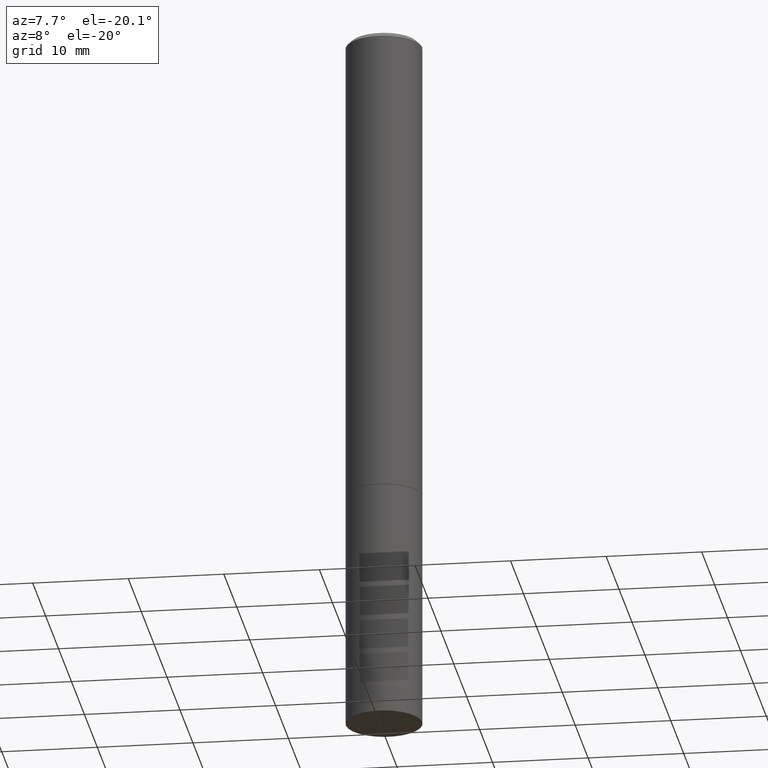
[diagram: clean part render]
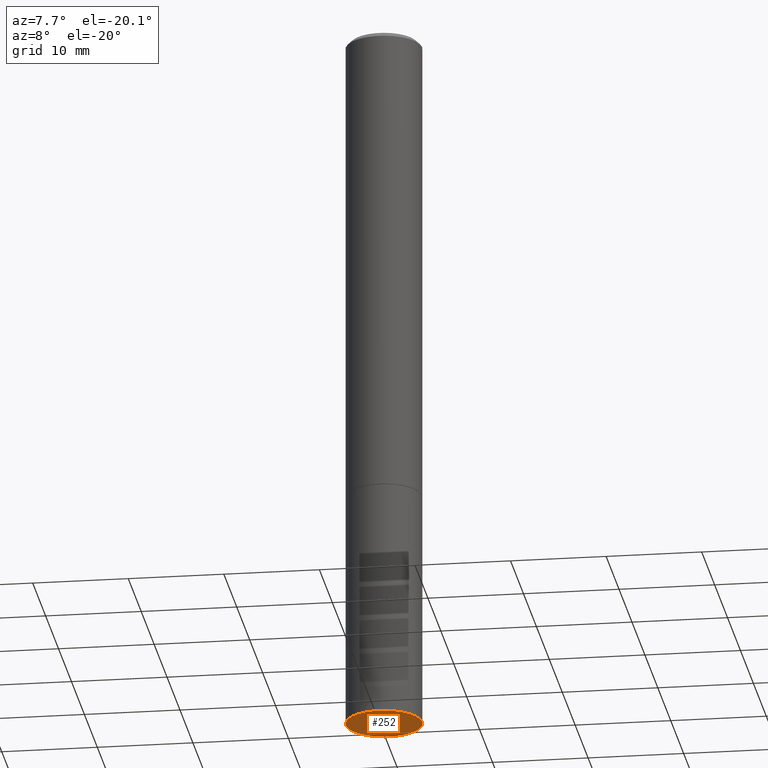
[diagram: same view with one face highlighted and labeled with its STEP entity id]
A machine part, auxiliary view. The second image highlights one B-rep face of the part: STEP entity #252.
In plain terms, the highlighted planar face has unit normal (0, -0, -1).
Its self-contained STEP definition (entity closure, byte-faithful):
#1 = DIRECTION ( 'NONE',  ( 1.000000000000000000, -6.982962677686261977E-15, 0.000000000000000000 ) ) ;
#10 = CARTESIAN_POINT ( 'NONE',  ( 7.220980290903470182E-29, -1.030964609733603853E-14, -2.952799999999999869 ) ) ;
#38 = EDGE_CURVE ( 'NONE', #97, #159, #75, .T. ) ;
#55 = DIRECTION ( 'NONE',  ( -2.445468806185136597E-29, 3.491481338843145583E-15, 1.000000000000000000 ) ) ;
#75 = CIRCLE ( 'NONE', #363, 0.1575000000000000011 ) ;
#91 = CIRCLE ( 'NONE', #235, 0.1575000000000000011 ) ;
#97 = VERTEX_POINT ( 'NONE', #350 ) ;
#122 = DIRECTION ( 'NONE',  ( 2.438088387897960049E-29, -3.491481338843145188E-15, -1.000000000000000000 ) ) ;
#129 = FACE_OUTER_BOUND ( 'NONE', #262, .T. ) ;
#144 = CARTESIAN_POINT ( 'NONE',  ( 7.220980290903470182E-29, -1.030964609733603853E-14, -2.952799999999999869 ) ) ;
#159 = VERTEX_POINT ( 'NONE', #303 ) ;
#174 = PLANE ( 'NONE',  #308 ) ;
#206 = DIRECTION ( 'NONE',  ( -2.445468806185136597E-29, 3.491481338843145583E-15, 1.000000000000000000 ) ) ;
#235 = AXIS2_PLACEMENT_3D ( 'NONE', #10, #206, #331 ) ;
#236 = DIRECTION ( 'NONE',  ( -1.000000000000000000, 6.982962677686265922E-15, -4.876176775795935793E-29 ) ) ;
#252 = ADVANCED_FACE ( 'NONE', ( #129 ), #174, .T. ) ;
#262 = EDGE_LOOP ( 'NONE', ( #301, #357 ) ) ;
#295 = CARTESIAN_POINT ( 'NONE',  ( 1.099816621735659069E-15, 0.1574999999999896760, -2.952800000000000313 ) ) ;
#301 = ORIENTED_EDGE ( 'NONE', *, *, #361, .F. ) ;
#303 = CARTESIAN_POINT ( 'NONE',  ( 0.1575000000000000011, -1.140946271907162522E-14, -2.952799999999999869 ) ) ;
#308 = AXIS2_PLACEMENT_3D ( 'NONE', #295, #122, #236 ) ;
#331 = DIRECTION ( 'NONE',  ( 1.000000000000000000, -6.982962677686261977E-15, 0.000000000000000000 ) ) ;
#350 = CARTESIAN_POINT ( 'NONE',  ( -0.1575000000000000011, -7.472208747602227514E-15, -2.952799999999999869 ) ) ;
#357 = ORIENTED_EDGE ( 'NONE', *, *, #38, .F. ) ;
#361 = EDGE_CURVE ( 'NONE', #159, #97, #91, .T. ) ;
#363 = AXIS2_PLACEMENT_3D ( 'NONE', #144, #55, #1 ) ;